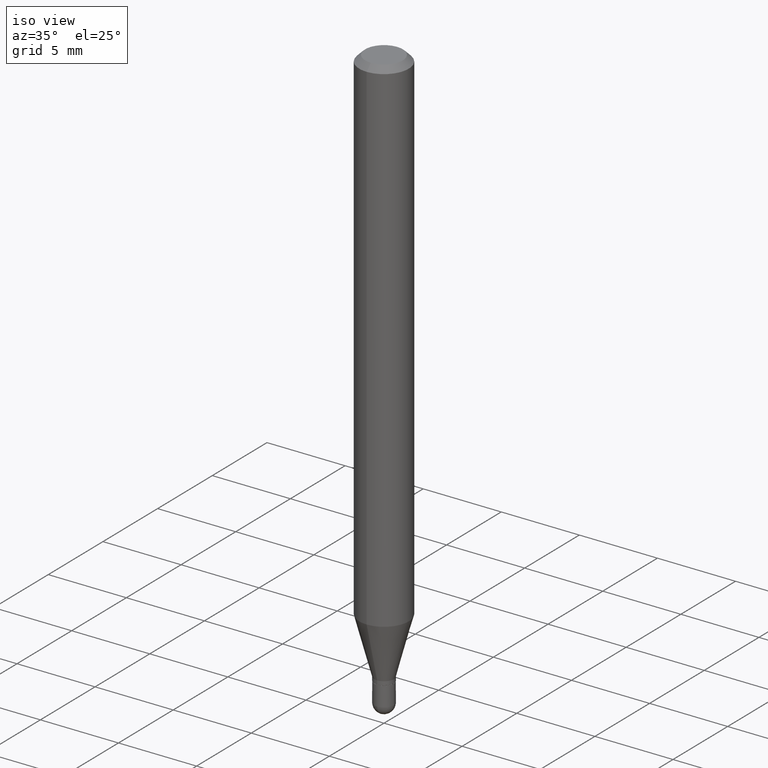
[diagram: clean part render]
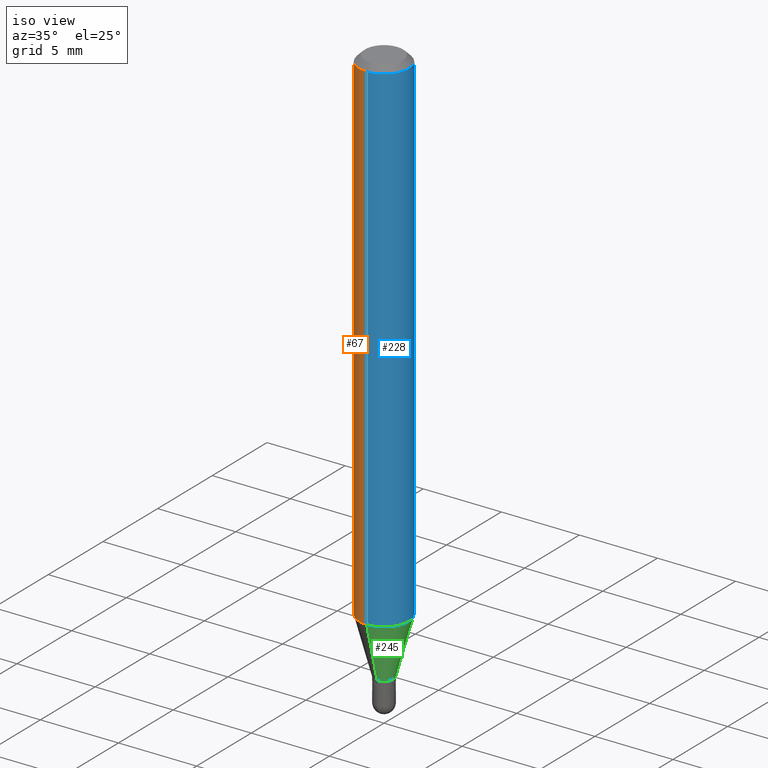
[diagram: same view with three faces highlighted in distinct colors, each labeled with its STEP entity id]
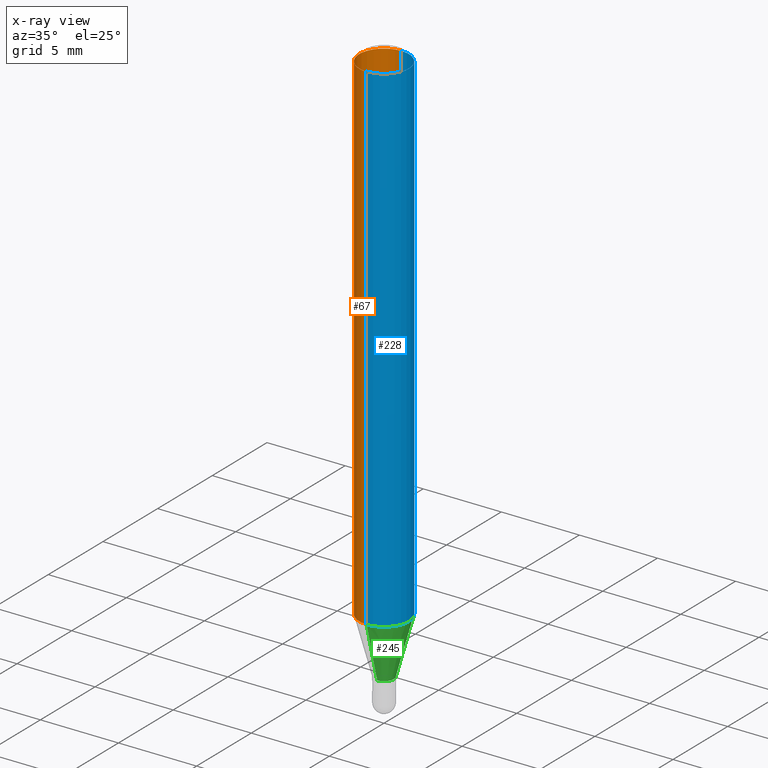
[diagram: x-ray of the same camera — body ghosted, the three highlighted faces saturated]
A machine part, iso view with three faces highlighted in distinct colors.
The next image is the same camera in x-ray (body ghosted, the three faces saturated) — at least one of them is partly hidden behind the body in this view.
Their STEP definitions:

[orange] entity #67 — the highlighted cylindrical surface (edge-blend (fillet) strip) has radius 1.5875 mm, axis along (-0, 0, 1).
#6 = EDGE_CURVE ( 'NONE', #367, #392, #416, .T. ) ;
#7 = DIRECTION ( 'NONE',  ( -2.445462433583878327E-29, 3.491490464770853436E-15, 1.000000000000000000 ) ) ;
#37 = VECTOR ( 'NONE', #388, 39.37007874015748143 ) ;
#40 = CARTESIAN_POINT ( 'NONE',  ( 3.668193650375898153E-31, -5.237235697156394761E-17, -0.01500000000000032904 ) ) ;
#59 = ORIENTED_EDGE ( 'NONE', *, *, #6, .T. ) ;
#67 = ADVANCED_FACE ( 'NONE', ( #248 ), #354, .T. ) ;
#100 = ORIENTED_EDGE ( 'NONE', *, *, #242, .T. ) ;
#108 = ORIENTED_EDGE ( 'NONE', *, *, #312, .F. ) ;
#114 = AXIS2_PLACEMENT_3D ( 'NONE', #40, #462, #351 ) ;
#160 = DIRECTION ( 'NONE',  ( -2.445462433583878327E-29, 3.491490464770853436E-15, 1.000000000000000000 ) ) ;
#166 = CARTESIAN_POINT ( 'NONE',  ( 4.440892098500625669E-16, 0.06250000000000000000, -2.182181540481783151E-16 ) ) ;
#183 = CARTESIAN_POINT ( 'NONE',  ( -4.364351673553912750E-16, -0.06250000000000005551, -0.01500000000000011047 ) ) ;
#203 = AXIS2_PLACEMENT_3D ( 'NONE', #503, #160, #505 ) ;
#205 = DIRECTION ( 'NONE',  ( -6.982962677686265922E-15, -1.000000000000000000, 3.491490464770853042E-15 ) ) ;
#226 = LINE ( 'NONE', #502, #37 ) ;
#242 = EDGE_CURVE ( 'NONE', #392, #420, #226, .T. ) ;
#248 = FACE_OUTER_BOUND ( 'NONE', #402, .T. ) ;
#254 = AXIS2_PLACEMENT_3D ( 'NONE', #391, #7, #205 ) ;
#265 = VERTEX_POINT ( 'NONE', #499 ) ;
#280 = EDGE_CURVE ( 'NONE', #265, #420, #489, .T. ) ;
#288 = VECTOR ( 'NONE', #313, 39.37007874015748143 ) ;
#312 = EDGE_CURVE ( 'NONE', #367, #265, #508, .T. ) ;
#313 = DIRECTION ( 'NONE',  ( -2.445462433583878047E-29, 3.491490464770853831E-15, 1.000000000000000000 ) ) ;
#322 = CARTESIAN_POINT ( 'NONE',  ( -4.364351673553605587E-16, -0.06250000000000446865, -1.274182069312383314 ) ) ;
#330 = CARTESIAN_POINT ( 'NONE',  ( 4.440892098500935790E-16, 0.06249999999999553135, -1.274182069312383758 ) ) ;
#344 = ORIENTED_EDGE ( 'NONE', *, *, #280, .F. ) ;
#351 = DIRECTION ( 'NONE',  ( -6.982962677686265922E-15, -1.000000000000000000, 3.483106191921935554E-15 ) ) ;
#354 = CYLINDRICAL_SURFACE ( 'NONE', #254, 0.06250000000000000000 ) ;
#367 = VERTEX_POINT ( 'NONE', #330 ) ;
#388 = DIRECTION ( 'NONE',  ( -2.445462433583878047E-29, 3.491490464770853831E-15, 1.000000000000000000 ) ) ;
#391 = CARTESIAN_POINT ( 'NONE',  ( 0.000000000000000000, 0.000000000000000000, 0.000000000000000000 ) ) ;
#392 = VERTEX_POINT ( 'NONE', #322 ) ;
#402 = EDGE_LOOP ( 'NONE', ( #108, #59, #100, #344 ) ) ;
#416 = CIRCLE ( 'NONE', #203, 0.06250000000000000000 ) ;
#420 = VERTEX_POINT ( 'NONE', #183 ) ;
#462 = DIRECTION ( 'NONE',  ( -2.445462433583878327E-29, 3.491490464770853436E-15, 1.000000000000000000 ) ) ;
#489 = CIRCLE ( 'NONE', #114, 0.06250000000000000000 ) ;
#499 = CARTESIAN_POINT ( 'NONE',  ( 4.440892098500939734E-16, 0.06249999999999995143, -0.01500000000000054588 ) ) ;
#502 = CARTESIAN_POINT ( 'NONE',  ( -4.364351673553916201E-16, -0.06250000000000000000, 2.182181540481783151E-16 ) ) ;
#503 = CARTESIAN_POINT ( 'NONE',  ( 3.115964384049603462E-29, -4.448794545386181558E-15, -1.274182069312383536 ) ) ;
#505 = DIRECTION ( 'NONE',  ( -6.982962677686265922E-15, -1.000000000000000000, 4.370956789862821150E-15 ) ) ;
#508 = LINE ( 'NONE', #166, #288 ) ;

[blue] entity #228 — the highlighted cylindrical surface (edge-blend (fillet) strip) has radius 1.5875 mm, axis along (-0, 0, 1).
#37 = VECTOR ( 'NONE', #388, 39.37007874015748143 ) ;
#45 = AXIS2_PLACEMENT_3D ( 'NONE', #70, #430, #194 ) ;
#58 = DIRECTION ( 'NONE',  ( -2.445462433583878327E-29, 3.491490464770853436E-15, 1.000000000000000000 ) ) ;
#69 = ORIENTED_EDGE ( 'NONE', *, *, #236, .T. ) ;
#70 = CARTESIAN_POINT ( 'NONE',  ( 3.115964384049603462E-29, -4.448794545386181558E-15, -1.274182069312383536 ) ) ;
#91 = DIRECTION ( 'NONE',  ( -2.445462433583878327E-29, 3.491490464770853436E-15, 1.000000000000000000 ) ) ;
#136 = CARTESIAN_POINT ( 'NONE',  ( 3.668193650375898153E-31, -5.237235697156394761E-17, -0.01500000000000032904 ) ) ;
#159 = EDGE_CURVE ( 'NONE', #420, #265, #293, .T. ) ;
#166 = CARTESIAN_POINT ( 'NONE',  ( 4.440892098500625669E-16, 0.06250000000000000000, -2.182181540481783151E-16 ) ) ;
#183 = CARTESIAN_POINT ( 'NONE',  ( -4.364351673553912750E-16, -0.06250000000000005551, -0.01500000000000011047 ) ) ;
#194 = DIRECTION ( 'NONE',  ( -6.982962677686265922E-15, -1.000000000000000000, 4.370956789862821150E-15 ) ) ;
#210 = DIRECTION ( 'NONE',  ( -6.982962677686265922E-15, -1.000000000000000000, 3.483106191921935554E-15 ) ) ;
#217 = ORIENTED_EDGE ( 'NONE', *, *, #312, .T. ) ;
#226 = LINE ( 'NONE', #502, #37 ) ;
#228 = ADVANCED_FACE ( 'NONE', ( #408 ), #450, .T. ) ;
#235 = AXIS2_PLACEMENT_3D ( 'NONE', #136, #91, #210 ) ;
#236 = EDGE_CURVE ( 'NONE', #392, #367, #262, .T. ) ;
#242 = EDGE_CURVE ( 'NONE', #392, #420, #226, .T. ) ;
#243 = AXIS2_PLACEMENT_3D ( 'NONE', #291, #58, #259 ) ;
#252 = EDGE_LOOP ( 'NONE', ( #69, #217, #501, #432 ) ) ;
#259 = DIRECTION ( 'NONE',  ( -6.982962677686265922E-15, -1.000000000000000000, 3.491490464770853042E-15 ) ) ;
#262 = CIRCLE ( 'NONE', #45, 0.06250000000000000000 ) ;
#265 = VERTEX_POINT ( 'NONE', #499 ) ;
#288 = VECTOR ( 'NONE', #313, 39.37007874015748143 ) ;
#291 = CARTESIAN_POINT ( 'NONE',  ( 0.000000000000000000, 0.000000000000000000, 0.000000000000000000 ) ) ;
#293 = CIRCLE ( 'NONE', #235, 0.06250000000000000000 ) ;
#312 = EDGE_CURVE ( 'NONE', #367, #265, #508, .T. ) ;
#313 = DIRECTION ( 'NONE',  ( -2.445462433583878047E-29, 3.491490464770853831E-15, 1.000000000000000000 ) ) ;
#322 = CARTESIAN_POINT ( 'NONE',  ( -4.364351673553605587E-16, -0.06250000000000446865, -1.274182069312383314 ) ) ;
#330 = CARTESIAN_POINT ( 'NONE',  ( 4.440892098500935790E-16, 0.06249999999999553135, -1.274182069312383758 ) ) ;
#367 = VERTEX_POINT ( 'NONE', #330 ) ;
#388 = DIRECTION ( 'NONE',  ( -2.445462433583878047E-29, 3.491490464770853831E-15, 1.000000000000000000 ) ) ;
#392 = VERTEX_POINT ( 'NONE', #322 ) ;
#408 = FACE_OUTER_BOUND ( 'NONE', #252, .T. ) ;
#420 = VERTEX_POINT ( 'NONE', #183 ) ;
#430 = DIRECTION ( 'NONE',  ( -2.445462433583878327E-29, 3.491490464770853436E-15, 1.000000000000000000 ) ) ;
#432 = ORIENTED_EDGE ( 'NONE', *, *, #242, .F. ) ;
#450 = CYLINDRICAL_SURFACE ( 'NONE', #243, 0.06250000000000000000 ) ;
#499 = CARTESIAN_POINT ( 'NONE',  ( 4.440892098500939734E-16, 0.06249999999999995143, -0.01500000000000054588 ) ) ;
#501 = ORIENTED_EDGE ( 'NONE', *, *, #159, .F. ) ;
#502 = CARTESIAN_POINT ( 'NONE',  ( -4.364351673553916201E-16, -0.06250000000000000000, 2.182181540481783151E-16 ) ) ;
#508 = LINE ( 'NONE', #166, #288 ) ;

[green] entity #245 — the highlighted conical surface has half-angle 15 deg.
#11 = DIRECTION ( 'NONE',  ( -6.982962677686265133E-15, -1.000000000000000000, 0.000000000000000000 ) ) ;
#44 = CARTESIAN_POINT ( 'NONE',  ( 3.090860900556762480E-16, 0.02449999999999498065, -1.416000000000000369 ) ) ;
#45 = AXIS2_PLACEMENT_3D ( 'NONE', #70, #430, #194 ) ;
#49 = DIRECTION ( 'NONE',  ( -2.445462433583878327E-29, 3.491490464770853436E-15, 1.000000000000000000 ) ) ;
#70 = CARTESIAN_POINT ( 'NONE',  ( 3.115964384049603462E-29, -4.448794545386181558E-15, -1.274182069312383536 ) ) ;
#78 = ORIENTED_EDGE ( 'NONE', *, *, #236, .F. ) ;
#79 = CARTESIAN_POINT ( 'NONE',  ( -1.710825856032783344E-16, -0.02450000000000486858, -1.416000000000000369 ) ) ;
#86 = AXIS2_PLACEMENT_3D ( 'NONE', #400, #49, #11 ) ;
#117 = ORIENTED_EDGE ( 'NONE', *, *, #332, .T. ) ;
#131 = DIRECTION ( 'NONE',  ( 1.839019923739602682E-15, 0.2588190451025252914, 0.9659258262890670910 ) ) ;
#161 = DIRECTION ( 'NONE',  ( -1.807323732225332900E-15, -0.2588190451025185190, 0.9659258262890689783 ) ) ;
#163 = CIRCLE ( 'NONE', #86, 0.02449999999999992462 ) ;
#191 = EDGE_CURVE ( 'NONE', #232, #382, #163, .T. ) ;
#194 = DIRECTION ( 'NONE',  ( -6.982962677686265922E-15, -1.000000000000000000, 4.370956789862821150E-15 ) ) ;
#198 = DIRECTION ( 'NONE',  ( -6.982962677686265133E-15, -1.000000000000000000, 0.000000000000000000 ) ) ;
#212 = ORIENTED_EDGE ( 'NONE', *, *, #299, .F. ) ;
#221 = VECTOR ( 'NONE', #161, 39.37007874015748854 ) ;
#232 = VERTEX_POINT ( 'NONE', #336 ) ;
#236 = EDGE_CURVE ( 'NONE', #392, #367, #262, .T. ) ;
#245 = ADVANCED_FACE ( 'NONE', ( #345 ), #310, .T. ) ;
#262 = CIRCLE ( 'NONE', #45, 0.06250000000000000000 ) ;
#274 = ORIENTED_EDGE ( 'NONE', *, *, #191, .T. ) ;
#275 = LINE ( 'NONE', #469, #349 ) ;
#299 = EDGE_CURVE ( 'NONE', #232, #392, #308, .T. ) ;
#308 = LINE ( 'NONE', #79, #221 ) ;
#310 = CONICAL_SURFACE ( 'NONE', #443, 0.02449999999999992462, 0.2617993877991506291 ) ;
#322 = CARTESIAN_POINT ( 'NONE',  ( -4.364351673553605587E-16, -0.06250000000000446865, -1.274182069312383314 ) ) ;
#330 = CARTESIAN_POINT ( 'NONE',  ( 4.440892098500935790E-16, 0.06249999999999553135, -1.274182069312383758 ) ) ;
#332 = EDGE_CURVE ( 'NONE', #382, #367, #275, .T. ) ;
#336 = CARTESIAN_POINT ( 'NONE',  ( -1.710825856032783344E-16, -0.02450000000000486858, -1.416000000000000369 ) ) ;
#343 = DIRECTION ( 'NONE',  ( -2.445462433583878327E-29, 3.491490464770853436E-15, 1.000000000000000000 ) ) ;
#345 = FACE_OUTER_BOUND ( 'NONE', #403, .T. ) ;
#349 = VECTOR ( 'NONE', #131, 39.37007874015748143 ) ;
#367 = VERTEX_POINT ( 'NONE', #330 ) ;
#382 = VERTEX_POINT ( 'NONE', #44 ) ;
#392 = VERTEX_POINT ( 'NONE', #322 ) ;
#400 = CARTESIAN_POINT ( 'NONE',  ( 3.462774805954772922E-29, -4.943950498115529734E-15, -1.416000000000000369 ) ) ;
#403 = EDGE_LOOP ( 'NONE', ( #274, #117, #78, #212 ) ) ;
#430 = DIRECTION ( 'NONE',  ( -2.445462433583878327E-29, 3.491490464770853436E-15, 1.000000000000000000 ) ) ;
#435 = CARTESIAN_POINT ( 'NONE',  ( 3.462774805954772922E-29, -4.943950498115529734E-15, -1.416000000000000369 ) ) ;
#443 = AXIS2_PLACEMENT_3D ( 'NONE', #435, #343, #198 ) ;
#469 = CARTESIAN_POINT ( 'NONE',  ( 1.740829702612586212E-16, 0.02449999999999498065, -1.416000000000000369 ) ) ;